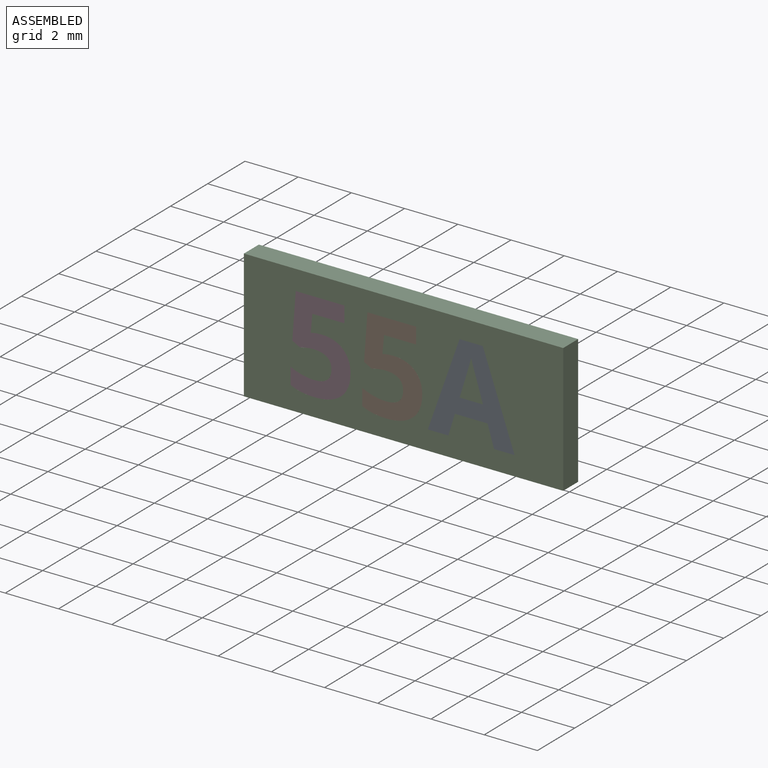
[diagram: assembled view]
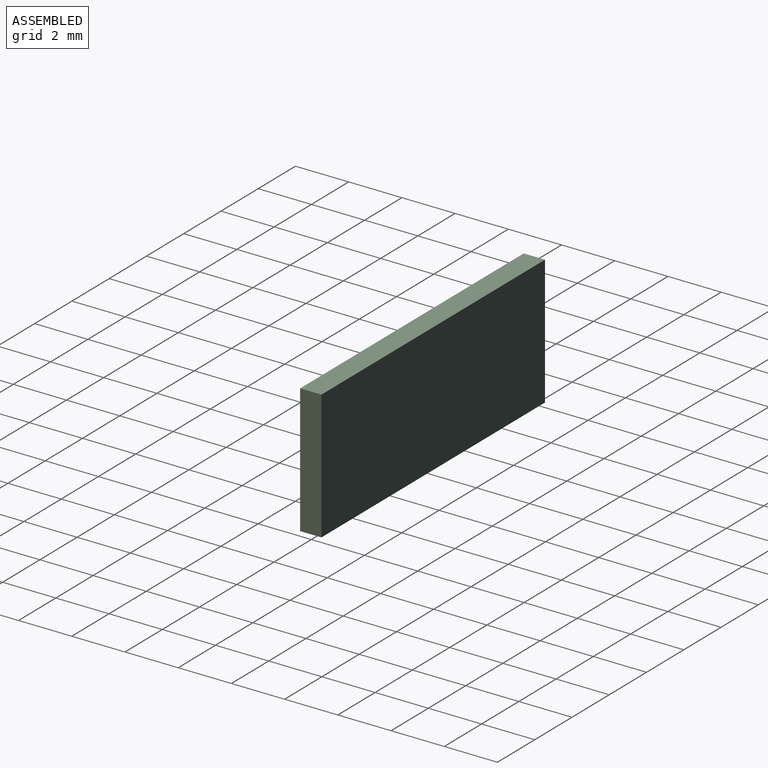
[diagram: assembled view, second angle]
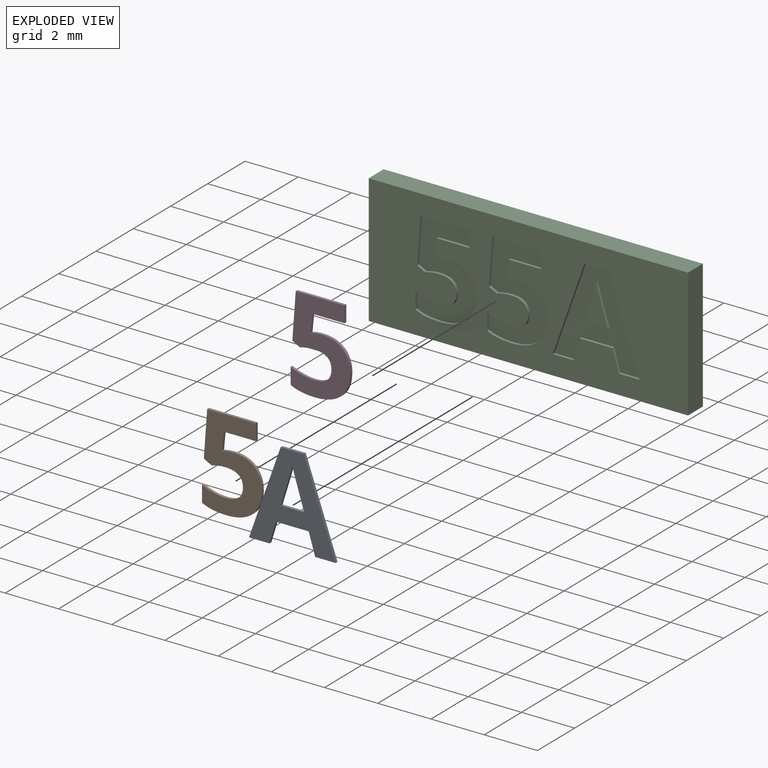
[diagram: exploded view]
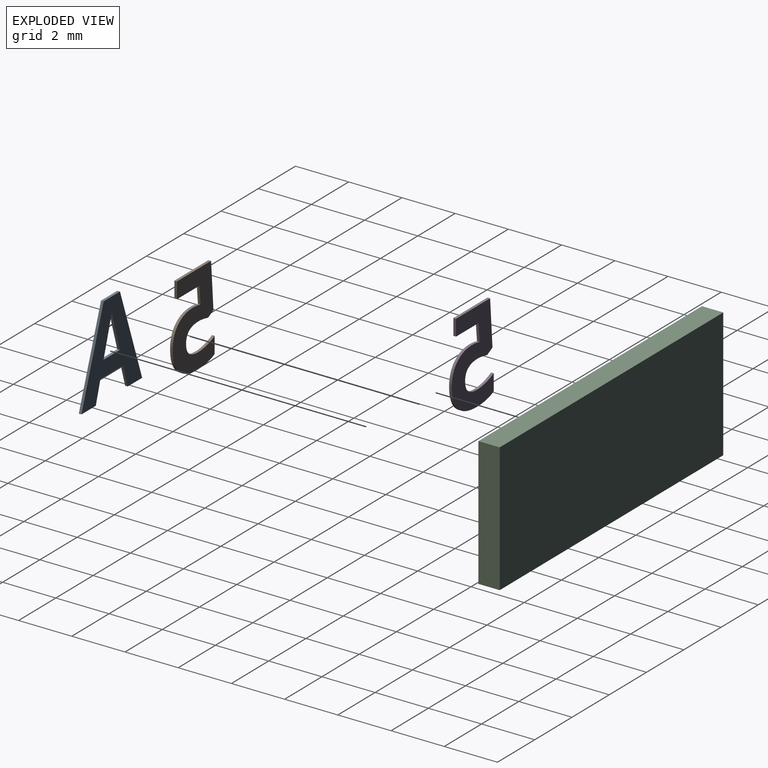
[diagram: exploded view, second angle]
ASSEMBLY  parts=4 mates=3
PART A: 14 faces, bbox 3.3x0.1x3.4 mm
  f0: plane 3.39x3.26mm, normal (0,-1,0), area 5.2mm2, adj f1,f2,f3,f4,f5,f6,f8,f9
  f1: plane 3.39x1.19mm, normal (0.94,0,0.33), area 0.4mm2, adj f0,f2,f7,f9
  f2: plane 0.87x0.1mm, normal (0,0,1), area 0.1mm2, adj f0,f1,f3,f7
  f3: plane 3.39x1.19mm, normal (-0.94,0,0.33), area 0.4mm2, adj f0,f2,f4,f7
  f4: plane 0.77x0.1mm, normal (0,0,-1), area 0.1mm2, adj f0,f3,f5,f7
  f5: plane 0.8x0.24mm, normal (0.96,0,-0.29), area 0.1mm2, adj f0,f4,f7,f8
  f6: extruded ~1.46x0.44mm, area 0.2mm2, adj f0,f7,f11,f12
  f7: plane 3.39x3.26mm, normal (0,1,0), area 5.2mm2, adj f1,f2,f3,f4,f5,f6,f8,f9
  f8: plane 1.23x0.1mm, normal (0,0,-1), area 0.1mm2, adj f0,f5,f7,f10
  f9: plane 0.77x0.1mm, normal (0,0,-1), area 0.1mm2, adj f0,f1,f7,f10
  f10: plane 0.8x0.24mm, normal (-0.96,0,-0.29), area 0.1mm2, adj f0,f7,f8,f9
  f11: extruded ~0.23x0.1mm, area 0mm2, adj f0,f6,f7,f13
  f12: plane 0.88x0.1mm, normal (0,0,1), area 0.1mm2, adj f0,f6,f7,f13
  f13: extruded ~1.23x0.38mm, area 0.1mm2, adj f0,f7,f11,f12
PART B: 22 faces, bbox 2.3x0.1x3.4 mm
  f0: plane 3.42x2.25mm, normal (0,-1,0), area 4.5mm2, adj f1,f2,f3,f4,f5,f6,f7,f8
  f1: plane 0.1x0.08mm, normal (-0.2,0,0.98), area 0mm2, adj f0,f2,f18,f20
  f2: plane 0.66x0.1mm, normal (1,0,-0.09), area 0.1mm2, adj f0,f1,f3,f18
  f3: plane 1.2x0.1mm, normal (0,0,-1), area 0.1mm2, adj f0,f2,f4,f18
  f4: plane 0.6x0.1mm, normal (1,0,0), area 0.1mm2, adj f0,f3,f5,f18
  f5: plane 1.83x0.1mm, normal (0,0,1), area 0.2mm2, adj f0,f4,f6,f18
  f6: plane 1.72x0.13mm, normal (-1,0,0.07), area 0.2mm2, adj f0,f5,f7,f18
  f7: plane 0.28x0.15mm, normal (-0.47,0,-0.88), area 0mm2, adj f0,f6,f8,f18
  f8: extruded ~0.24x0.1mm, area 0mm2, adj f0,f7,f9,f18
  f9: extruded ~0.27x0.1mm, area 0mm2, adj f0,f8,f10,f18
  f10: extruded ~0.68x0.51mm, area 0.1mm2, adj f0,f9,f11,f18
  f11: extruded ~0.65x0.54mm, area 0.1mm2, adj f0,f10,f12,f18
  f12: extruded ~0.46x0.1mm, area 0mm2, adj f0,f11,f13,f18
  f13: extruded ~0.42x0.16mm, area 0mm2, adj f0,f12,f14,f18
  f14: plane 0.62x0.1mm, normal (-1,0,0), area 0.1mm2, adj f0,f13,f15,f18
  f15: extruded ~0.91x0.18mm, area 0.1mm2, adj f0,f14,f16,f18
  f16: extruded ~1x0.3mm, area 0.1mm2, adj f0,f15,f17,f18
  f17: extruded ~0.87x0.35mm, area 0.1mm2, adj f0,f16,f18,f19
  f18: plane 3.42x2.25mm, normal (0,1,0), area 4.5mm2, adj f1,f2,f3,f4,f5,f6,f7,f8
  f19: extruded ~0.75x0.29mm, area 0.1mm2, adj f0,f17,f18,f21
  f20: extruded ~0.35x0.1mm, area 0mm2, adj f0,f1,f18,f21
  f21: extruded ~0.78x0.27mm, area 0.1mm2, adj f0,f18,f19,f20
PART C: 62 faces, bbox 12x0.8x4.9 mm
  f0: plane 12x4.85mm, normal (0,-1,0), area 43.4mm2, adj f1,f2,f3,f4,f6,f7,f8,f9
  f1: plane 12x0.8mm, normal (0,0,-1), area 9.6mm2, adj f0,f2,f4,f5
  f2: plane 4.85x0.8mm, normal (1,0,0), area 3.9mm2, adj f0,f1,f3,f5
  f3: plane 12x0.8mm, normal (0,0,1), area 9.6mm2, adj f0,f2,f4,f5
  f4: plane 4.85x0.8mm, normal (-1,0,0), area 3.9mm2, adj f0,f1,f3,f5
  f5: plane 12x4.85mm, normal (0,1,0), area 58.2mm2, adj f1,f2,f3,f4
  f6: plane 0.77x0.1mm, normal (0,0,1), area 0.1mm2, adj f0,f7,f17,f18
  f7: plane 3.39x1.19mm, normal (-0.94,0,-0.33), area 0.4mm2, adj f0,f6,f8,f18
  f8: plane 0.87x0.1mm, normal (0,0,-1), area 0.1mm2, adj f0,f7,f9,f18
  f9: plane 3.39x1.19mm, normal (0.94,0,-0.33), area 0.4mm2, adj f0,f8,f10,f18
  f10: plane 0.77x0.1mm, normal (0,0,1), area 0.1mm2, adj f0,f9,f11,f18
  f11: plane 0.8x0.24mm, normal (-0.96,0,0.29), area 0.1mm2, adj f0,f10,f12,f18
  f12: plane 1.23x0.1mm, normal (0,0,1), area 0.1mm2, adj f0,f11,f17,f18
  f13: plane 0.88x0.1mm, normal (0,0,-1), area 0.1mm2, adj f14,f16,f18,f19
  f14: extruded ~1.46x0.44mm, area 0.2mm2, adj f13,f15,f18,f19
  f15: extruded ~0.23x0.1mm, area 0mm2, adj f14,f16,f18,f19
  f16: extruded ~1.23x0.38mm, area 0.1mm2, adj f13,f15,f18,f19
  f17: plane 0.8x0.24mm, normal (0.96,0,0.29), area 0.1mm2, adj f0,f6,f12,f18
  f18: plane 3.39x3.26mm, normal (0,-1,0), area 5.2mm2, adj f6,f7,f8,f9,f10,f11,f12,f13
  f19: plane 1.46x0.88mm, normal (0,-1,0), area 0.6mm2, adj f13,f14,f15,f16
  f20: extruded ~0.35x0.1mm, area 0mm2, adj f0,f21,f39,f40
  f21: plane 0.1x0.08mm, normal (0.2,0,-0.98), area 0mm2, adj f0,f20,f22,f40
  f22: plane 0.66x0.1mm, normal (-1,0,0.09), area 0.1mm2, adj f0,f21,f23,f40
  f23: plane 1.2x0.1mm, normal (0,0,1), area 0.1mm2, adj f0,f22,f24,f40
  f24: plane 0.6x0.1mm, normal (-1,0,0), area 0.1mm2, adj f0,f23,f25,f40
  f25: plane 1.83x0.1mm, normal (0,0,-1), area 0.2mm2, adj f0,f24,f26,f40
  f26: plane 1.72x0.13mm, normal (1,0,-0.07), area 0.2mm2, adj f0,f25,f27,f40
  f27: plane 0.28x0.15mm, normal (0.47,0,0.88), area 0mm2, adj f0,f26,f28,f40
  f28: extruded ~0.24x0.1mm, area 0mm2, adj f0,f27,f29,f40
  f29: extruded ~0.27x0.1mm, area 0mm2, adj f0,f28,f30,f40
  f30: extruded ~0.68x0.51mm, area 0.1mm2, adj f0,f29,f31,f40
  f31: extruded ~0.65x0.54mm, area 0.1mm2, adj f0,f30,f32,f40
  f32: extruded ~0.46x0.1mm, area 0mm2, adj f0,f31,f33,f40
  f33: extruded ~0.42x0.16mm, area 0mm2, adj f0,f32,f34,f40
  f34: plane 0.62x0.1mm, normal (1,0,0), area 0.1mm2, adj f0,f33,f35,f40
  f35: extruded ~0.91x0.18mm, area 0.1mm2, adj f0,f34,f36,f40
  f36: extruded ~1x0.3mm, area 0.1mm2, adj f0,f35,f37,f40
  f37: extruded ~0.87x0.35mm, area 0.1mm2, adj f0,f36,f38,f40
  f38: extruded ~0.75x0.29mm, area 0.1mm2, adj f0,f37,f39,f40
  f39: extruded ~0.78x0.27mm, area 0.1mm2, adj f0,f20,f38,f40
  f40: plane 3.42x2.25mm, normal (0,-1,0), area 4.5mm2, adj f20,f21,f22,f23,f24,f25,f26,f27
  f41: extruded ~0.35x0.1mm, area 0mm2, adj f0,f42,f60,f61
  f42: plane 0.1x0.08mm, normal (0.2,0,-0.98), area 0mm2, adj f0,f41,f43,f61
  f43: plane 0.66x0.1mm, normal (-1,0,0.09), area 0.1mm2, adj f0,f42,f44,f61
  f44: plane 1.2x0.1mm, normal (0,0,1), area 0.1mm2, adj f0,f43,f45,f61
  f45: plane 0.6x0.1mm, normal (-1,0,0), area 0.1mm2, adj f0,f44,f46,f61
  f46: plane 1.83x0.1mm, normal (0,0,-1), area 0.2mm2, adj f0,f45,f47,f61
  f47: plane 1.72x0.13mm, normal (1,0,-0.07), area 0.2mm2, adj f0,f46,f48,f61
  f48: plane 0.28x0.15mm, normal (0.47,0,0.88), area 0mm2, adj f0,f47,f49,f61
  f49: extruded ~0.24x0.1mm, area 0mm2, adj f0,f48,f50,f61
  f50: extruded ~0.27x0.1mm, area 0mm2, adj f0,f49,f51,f61
  f51: extruded ~0.68x0.51mm, area 0.1mm2, adj f0,f50,f52,f61
  f52: extruded ~0.65x0.54mm, area 0.1mm2, adj f0,f51,f53,f61
  f53: extruded ~0.46x0.1mm, area 0mm2, adj f0,f52,f54,f61
  f54: extruded ~0.42x0.16mm, area 0mm2, adj f0,f53,f55,f61
  f55: plane 0.62x0.1mm, normal (1,0,0), area 0.1mm2, adj f0,f54,f56,f61
  f56: extruded ~0.91x0.18mm, area 0.1mm2, adj f0,f55,f57,f61
  f57: extruded ~1x0.3mm, area 0.1mm2, adj f0,f56,f58,f61
  f58: extruded ~0.87x0.35mm, area 0.1mm2, adj f0,f57,f59,f61
  f59: extruded ~0.75x0.29mm, area 0.1mm2, adj f0,f58,f60,f61
  f60: extruded ~0.78x0.27mm, area 0.1mm2, adj f0,f41,f59,f61
  f61: plane 3.42x2.25mm, normal (0,-1,0), area 4.5mm2, adj f41,f42,f43,f44,f45,f46,f47,f48
PART D: same geometry as B
PLACE A t=(4.01,0.41,-0.02)mm
PLACE B t=(-1.92,0.41,-0.02)mm
PLACE C t=(0.04,0.41,-0.02)mm
PLACE D t=(-4.61,0.41,-0.02)mm
MATE fastened D.f0 <-> C.f0  axis (0,-1,0) through (-4.21,-0.39,-1.58)mm
MATE fastened B.f0 <-> C.f0  axis (0,-1,0) through (-1.51,-0.39,-1.58)mm
MATE fastened A.f0 <-> C.f0  axis (0,-1,0) through (0.95,-0.39,-1.72)mm
